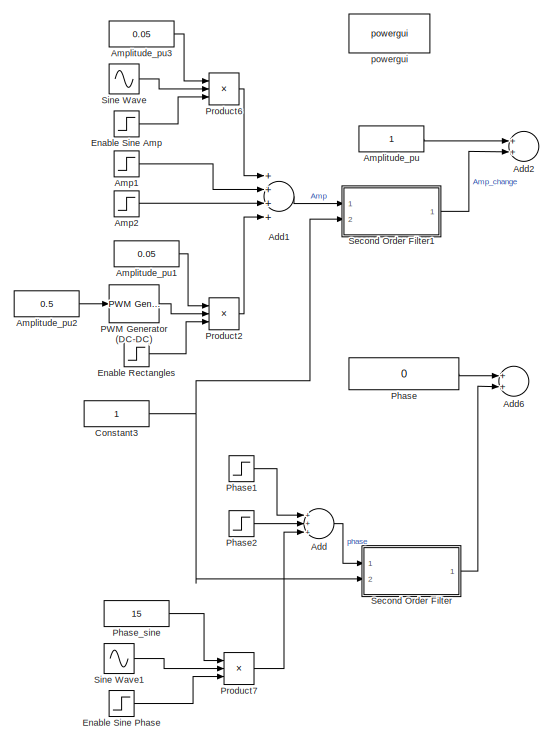
[diagram: root canvas - part 1/6, top left region]
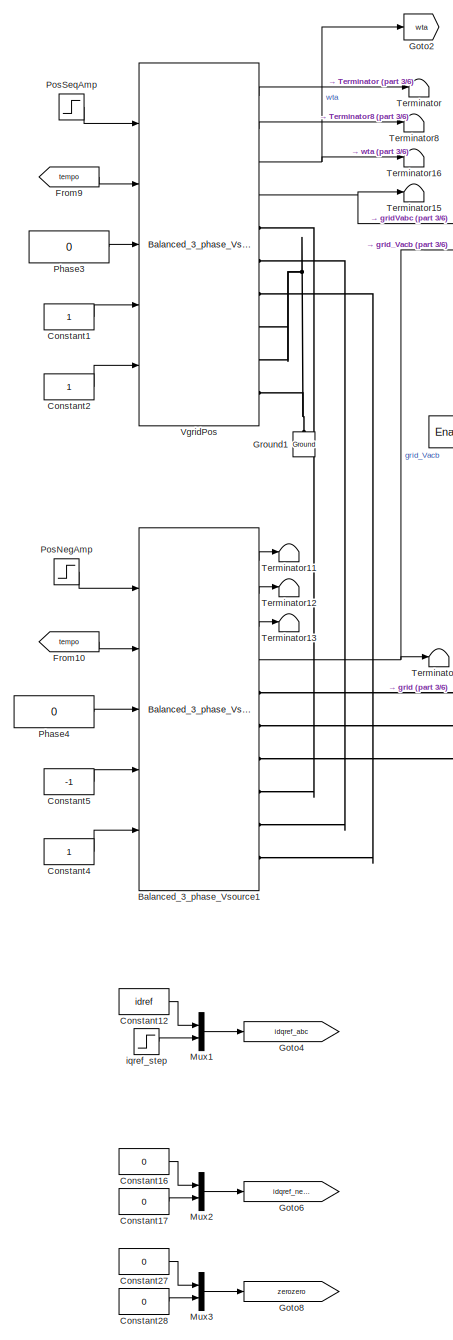
[diagram: root canvas - part 2/6, middle left region]
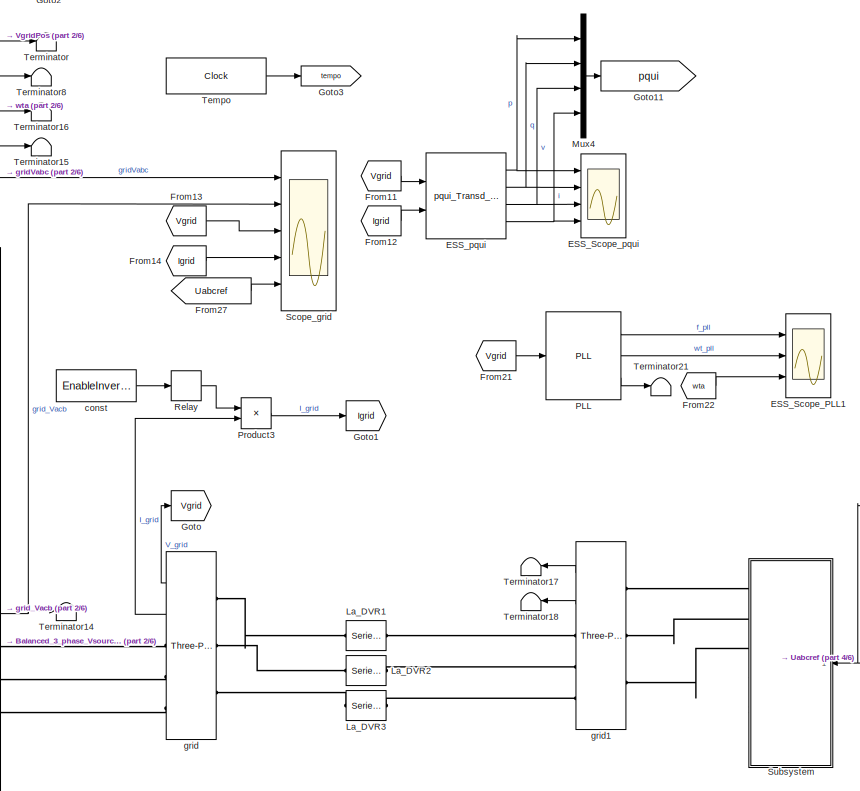
[diagram: root canvas - part 3/6, top center region]
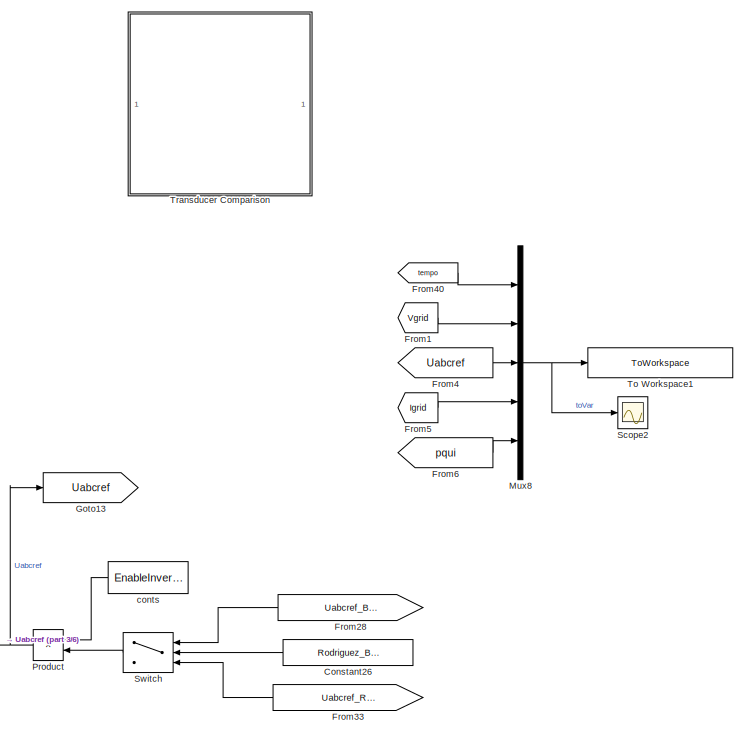
[diagram: root canvas - part 4/6, top right region]
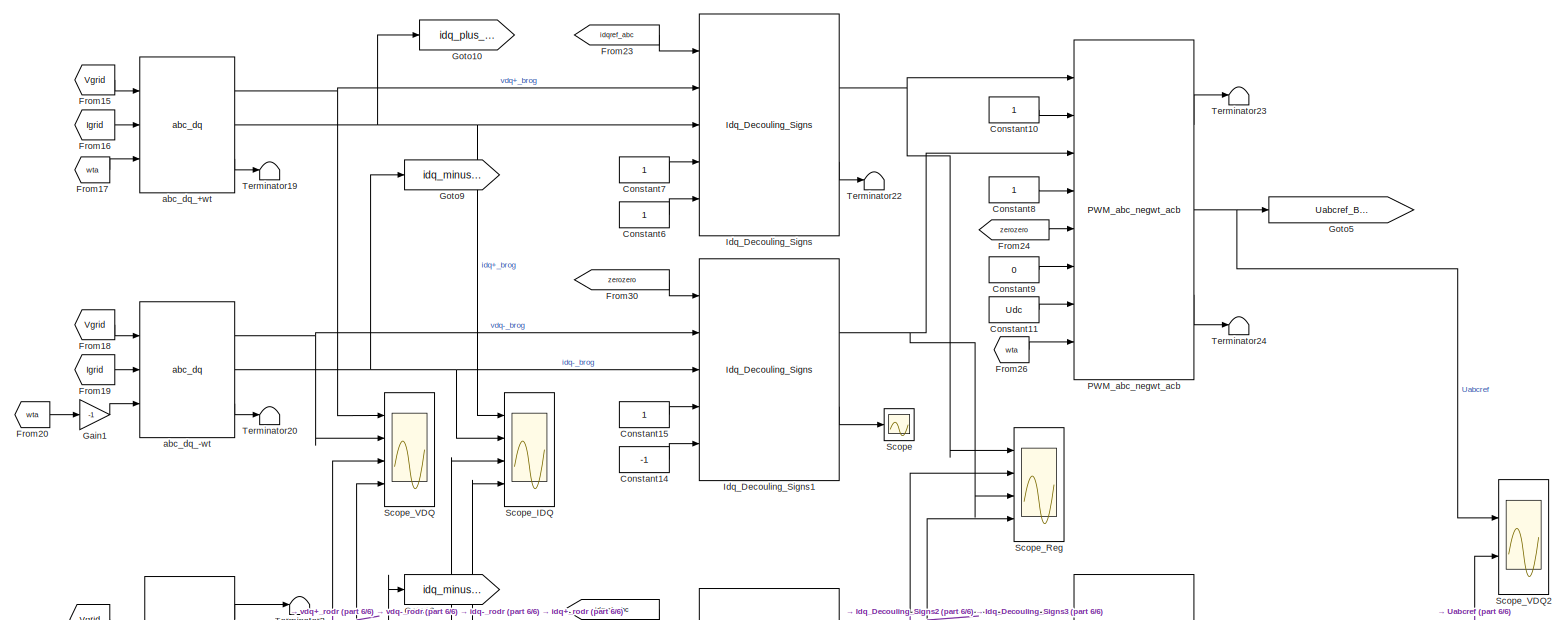
[diagram: root canvas - part 5/6, middle right region]
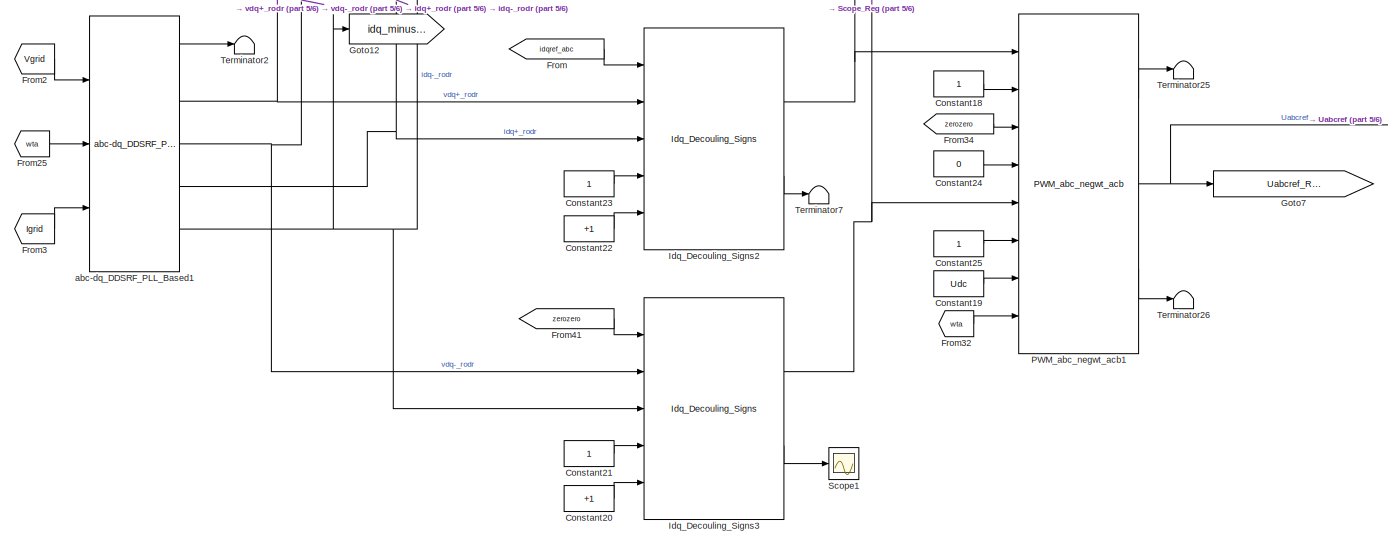
[diagram: root canvas - part 6/6, bottom right region]
MODEL slx_b98d9884da70
KIND model
CONFIG AbsTol = auto
CONFIG EnableMultiTasking = off
CONFIG FixedStep = auto
CONFIG MaxStep = auto
CONFIG MinStep = auto
CONFIG RelTol = 1e-3
CONFIG SampleTimeConstraint = Unconstrained
CONFIG Solver = VariableStepAuto
CONFIG SolverName = VariableStepAuto
CONFIG StartTime = 0.0
CONFIG StopTime = Ttot
BLOCK [Sum] Add
  Commented = on
  InputSameDT = off
  Inputs = +++
  OutDataTypeStr = Inherit: Inherit via internal rule
  Ports = [3, 1]
  SaturateOnIntegerOverflow = off
BLOCK [Sum] Add1
  Commented = on
  InputSameDT = off
  Inputs = ++++
  OutDataTypeStr = Inherit: Inherit via internal rule
  Ports = [4, 1]
  SaturateOnIntegerOverflow = off
BLOCK [Sum] Add2
  Commented = on
  InputSameDT = off
  OutDataTypeStr = Inherit: Inherit via internal rule
  Ports = [2, 1]
  SaturateOnIntegerOverflow = off
BLOCK [Sum] Add6
  Commented = on
  InputSameDT = off
  OutDataTypeStr = Inherit: Inherit via internal rule
  Ports = [2, 1]
  SaturateOnIntegerOverflow = off
BLOCK [Step] Amp1
  After = 0.1
  Commented = on
  Time = 1000.5
BLOCK [Step] Amp2
  After = -0.5
  Commented = on
  Time = 1000
BLOCK [Constant] Amplitude_pu
  Commented = on
BLOCK [Constant] Amplitude_pu1
  Commented = on
  Value = 0.05
BLOCK [Constant] Amplitude_pu2
  Commented = on
  Value = 0.5
BLOCK [Constant] Amplitude_pu3
  Commented = on
  Value = 0.05
BLOCK [Reference] Balanced_3_phase_Vsource1  REF=PhD_Library/Offshore_Oil_and_Wind/Balanced_3_phase_Vsource
  Ports = [5, 4, 0, 0, 0, 0, 6]
  SourceBlock = PhD_Library/Offshore_Oil_and_Wind/Balanced_3_phase_Vsource
  SourceType = Three-phase ideal voltage source
BLOCK [Constant] Constant1
BLOCK [Constant] Constant10
BLOCK [Constant] Constant11
  Value = Udc
BLOCK [Constant] Constant12
  Value = idref
BLOCK [Constant] Constant14
  Value = -1
BLOCK [Constant] Constant15
BLOCK [Constant] Constant16
  Value = 0
BLOCK [Constant] Constant17
  Value = 0
BLOCK [Constant] Constant18
BLOCK [Constant] Constant19
  Value = Udc
BLOCK [Constant] Constant2
BLOCK [Constant] Constant20
  Value = +1
BLOCK [Constant] Constant21
BLOCK [Constant] Constant22
  Value = +1
BLOCK [Constant] Constant23
BLOCK [Constant] Constant24
  Value = 0
BLOCK [Constant] Constant25
BLOCK [Constant] Constant26
  Value = Rodriguez_Brogan
BLOCK [Constant] Constant27
  Value = 0
BLOCK [Constant] Constant28
  Value = 0
BLOCK [Constant] Constant3
  Commented = on
BLOCK [Constant] Constant4
BLOCK [Constant] Constant5
  Value = -1
BLOCK [Constant] Constant6
BLOCK [Constant] Constant7
BLOCK [Constant] Constant8
BLOCK [Constant] Constant9
  Value = 0
BLOCK [Scope] ESS_Scope_PLL1
  Commented = on
  Floating = off
  NumInputPorts = 3
  Ports = [3]
  ScopeSpecificationString = Simulink.scopes.TimeScopeBlockCfg('CurrentConfiguration', extmgr.ConfigurationSet(extmgr.Configuration('Core','General UI',true),extmgr.Configuration('Core','Source UI',true),extmgr.Configuration('Sources','WiredSimulink',true,'DataLoggingVariableName','ScopeData2'),extmgr.Configuration('Visuals','Time Domain',true,'SerializedDisplays',{struct('MinYLimReal','0.96249','MaxYLimReal','1.03041','YLabe...<+1956ch>
BLOCK [Scope] ESS_Scope_pqui
  Floating = off
  NumInputPorts = 4
  Ports = [4]
  ScopeSpecificationString = Simulink.scopes.TimeScopeBlockCfg('CurrentConfiguration', extmgr.ConfigurationSet(extmgr.Configuration('Core','General UI',true),extmgr.Configuration('Core','Source UI',true),extmgr.Configuration('Sources','WiredSimulink',true,'DataLoggingVariableName','ScopeData1'),extmgr.Configuration('Visuals','Time Domain',true,'SerializedDisplays',{struct('MinYLimReal','-0.0606','MaxYLimReal','0.09826','YLabe...<+1977ch>
BLOCK [Reference] ESS_pqui  REF=PhD_Library/Offshore_Oil_and_Wind/pqui_Transd_NoZeroSeq
  Ports = [2, 4]
  SourceBlock = PhD_Library/Offshore_Oil_and_Wind/pqui_Transd_NoZeroSeq
  SourceType = u i p q transducer - No zero sequence
BLOCK [Step] Enable Rectangles
  Commented = on
  Time = 10000.2
BLOCK [Step] Enable Sine Amp
  Commented = on
  Time = 10000.2
BLOCK [Step] Enable Sine Phase
  Commented = on
  Time = 10000.2
BLOCK [From] From
  GotoTag = idqref_abc
BLOCK [From] From1
  GotoTag = Vgrid
  TagVisibility = global
BLOCK [From] From10
  GotoTag = tempo
  TagVisibility = global
BLOCK [From] From11
  GotoTag = Vgrid
  TagVisibility = global
BLOCK [From] From12
  GotoTag = Igrid
  TagVisibility = global
BLOCK [From] From13
  GotoTag = Vgrid
  TagVisibility = global
BLOCK [From] From14
  GotoTag = Igrid
  TagVisibility = global
BLOCK [From] From15
  GotoTag = Vgrid
  TagVisibility = global
BLOCK [From] From16
  GotoTag = Igrid
  TagVisibility = global
BLOCK [From] From17
  GotoTag = wta
  TagVisibility = global
BLOCK [From] From18
  GotoTag = Vgrid
  TagVisibility = global
BLOCK [From] From19
  GotoTag = Igrid
  TagVisibility = global
BLOCK [From] From2
  GotoTag = Vgrid
  TagVisibility = global
BLOCK [From] From20
  GotoTag = wta
  TagVisibility = global
BLOCK [From] From21
  Commented = on
  GotoTag = Vgrid
BLOCK [From] From22
  Commented = on
  GotoTag = wta
BLOCK [From] From23
  GotoTag = idqref_abc
BLOCK [From] From24
  GotoTag = zerozero
BLOCK [From] From25
  GotoTag = wta
  TagVisibility = global
BLOCK [From] From26
  GotoTag = wta
  TagVisibility = global
BLOCK [From] From27
  GotoTag = Uabcref
BLOCK [From] From28
  GotoTag = Uabcref_Brogan
  TagVisibility = global
BLOCK [From] From3
  GotoTag = Igrid
  TagVisibility = global
BLOCK [From] From30
  GotoTag = zerozero
BLOCK [From] From32
  GotoTag = wta
  TagVisibility = global
BLOCK [From] From33
  GotoTag = Uabcref_Rodriguez
  TagVisibility = global
BLOCK [From] From34
  GotoTag = zerozero
BLOCK [From] From4
  GotoTag = Uabcref
BLOCK [From] From40
  GotoTag = tempo
  TagVisibility = global
BLOCK [From] From41
  GotoTag = zerozero
BLOCK [From] From5
  GotoTag = Igrid
  TagVisibility = global
BLOCK [From] From6
  GotoTag = pqui
BLOCK [From] From9
  GotoTag = tempo
  TagVisibility = global
BLOCK [Gain] Gain1
  Gain = -1
  OutDataTypeStr = Inherit: Inherit via internal rule
  ParamDataTypeStr = Inherit: Inherit via internal rule
  SaturateOnIntegerOverflow = off
BLOCK [Goto] Goto
  GotoTag = Vgrid
  TagVisibility = global
BLOCK [Goto] Goto1
  GotoTag = Igrid
  TagVisibility = global
BLOCK [Goto] Goto10
  GotoTag = idq_plus_brogan
  TagVisibility = global
BLOCK [Goto] Goto11
  GotoTag = pqui
BLOCK [Goto] Goto12
  GotoTag = idq_minus_rod
  TagVisibility = global
BLOCK [Goto] Goto13
  GotoTag = Uabcref
BLOCK [Goto] Goto2
  GotoTag = wta
  TagVisibility = global
BLOCK [Goto] Goto3
  GotoTag = tempo
  TagVisibility = global
BLOCK [Goto] Goto4
  GotoTag = idqref_abc
BLOCK [Goto] Goto5
  GotoTag = Uabcref_Brogan
  TagVisibility = global
BLOCK [Goto] Goto6
  GotoTag = idqref_negwt
BLOCK [Goto] Goto7
  GotoTag = Uabcref_Rodriguez
  TagVisibility = global
BLOCK [Goto] Goto8
  GotoTag = zerozero
BLOCK [Goto] Goto9
  GotoTag = idq_minus_brogan
  TagVisibility = global
BLOCK [Reference] Ground1  REF=powerlib/Elements/Ground
  Ports = [0, 0, 0, 0, 0, 1]
  SourceBlock = powerlib/Elements/Ground
  SourceProductBaseCode = PS
  SourceProductName = Simscape Power Systems
  SourceType = Ground
BLOCK [Reference] Idq_Decouling_Signs  REF=PhD_Library/Offshore_Oil_and_Wind/Idq_Decouling_Signs
  Ports = [5, 2]
  SourceBlock = PhD_Library/Offshore_Oil_and_Wind/Idq_Decouling_Signs
  SourceType = Idq Controller - PI regulator with anti-windup
BLOCK [Reference] Idq_Decouling_Signs1  REF=PhD_Library/Offshore_Oil_and_Wind/Idq_Decouling_Signs
  Ports = [5, 2]
  SourceBlock = PhD_Library/Offshore_Oil_and_Wind/Idq_Decouling_Signs
  SourceType = Idq Controller - PI regulator with anti-windup
BLOCK [Reference] Idq_Decouling_Signs2  REF=PhD_Library/Offshore_Oil_and_Wind/Idq_Decouling_Signs
  Ports = [5, 2]
  SourceBlock = PhD_Library/Offshore_Oil_and_Wind/Idq_Decouling_Signs
  SourceType = Idq Controller - PI regulator with anti-windup
BLOCK [Reference] Idq_Decouling_Signs3  REF=PhD_Library/Offshore_Oil_and_Wind/Idq_Decouling_Signs
  Ports = [5, 2]
  SourceBlock = PhD_Library/Offshore_Oil_and_Wind/Idq_Decouling_Signs
  SourceType = Idq Controller - PI regulator with anti-windup
BLOCK [Reference] La_DVR1  REF=powerlib/Elements/Series RLC Branch
  AttributesFormatString = \n
  Ports = [0, 0, 0, 0, 0, 1, 1]
  SourceBlock = powerlib/Elements/Series RLC Branch
  SourceProductBaseCode = PS
  SourceProductName = Simscape Power Systems
  SourceType = Series RLC Branch
BLOCK [Reference] La_DVR2  REF=powerlib/Elements/Series RLC Branch
  AttributesFormatString = \n
  Ports = [0, 0, 0, 0, 0, 1, 1]
  SourceBlock = powerlib/Elements/Series RLC Branch
  SourceProductBaseCode = PS
  SourceProductName = Simscape Power Systems
  SourceType = Series RLC Branch
BLOCK [Reference] La_DVR3  REF=powerlib/Elements/Series RLC Branch
  AttributesFormatString = \n
  Ports = [0, 0, 0, 0, 0, 1, 1]
  SourceBlock = powerlib/Elements/Series RLC Branch
  SourceProductBaseCode = PS
  SourceProductName = Simscape Power Systems
  SourceType = Series RLC Branch
BLOCK [Mux] Mux1
  DisplayOption = bar
  Inputs = 2
  Ports = [2, 1]
BLOCK [Mux] Mux2
  DisplayOption = bar
  Inputs = 2
  Ports = [2, 1]
BLOCK [Mux] Mux3
  DisplayOption = bar
  Inputs = 2
  Ports = [2, 1]
BLOCK [Mux] Mux4
  DisplayOption = bar
  Ports = [4, 1]
BLOCK [Mux] Mux8
  DisplayOption = bar
  Inputs = 5
  Ports = [5, 1]
BLOCK [Reference] PLL  REF=PhD_Library/Offshore_Oil_and_Wind/PLL
  Commented = on
  Ports = [1, 3]
  SourceBlock = PhD_Library/Offshore_Oil_and_Wind/PLL
  SourceType = Matlabs PLL with POS and NEG omega t output
BLOCK [Reference] PWM Generator (DC-DC)  REF=powerlib_meascontrol/Pulse & Signal
Generators/PWM Generator
(DC-DC)
  Commented = on
  Ports = [1, 1]
  SourceBlock = powerlib_meascontrol/Pulse & Signal\nGenerators/PWM Generator\n(DC-DC)
  SourceProductBaseCode = PS
  SourceProductName = Simscape Power Systems
  SourceType = PWM Generator (DC-DC)
BLOCK [Reference] PWM_abc_negwt_acb  REF=PhD_Library/Offshore_Oil_and_Wind/PWM_abc_negwt_acb
  Ports = [8, 3]
  SourceBlock = PhD_Library/Offshore_Oil_and_Wind/PWM_abc_negwt_acb
  SourceType = Scaling of vdq ref and PWM gate generation
BLOCK [Reference] PWM_abc_negwt_acb1  REF=PhD_Library/Offshore_Oil_and_Wind/PWM_abc_negwt_acb
  Ports = [8, 3]
  SourceBlock = PhD_Library/Offshore_Oil_and_Wind/PWM_abc_negwt_acb
  SourceType = Scaling of vdq ref and PWM gate generation
BLOCK [Constant] Phase
  Commented = on
  Value = 0
BLOCK [Step] Phase1
  After = +15
  Commented = on
  Time = 10000.2
BLOCK [Step] Phase2
  After = -5
  Commented = on
  Time = 1000
BLOCK [Constant] Phase3
  Value = 0
BLOCK [Constant] Phase4
  Value = 0
BLOCK [Constant] Phase_sine
  Commented = on
  Value = 15
BLOCK [Step] PosNegAmp
  After = V_NegSeq_FinalValue
  Before = V_NegSeq_InitialValue
  Time = V_NegSeq_StepTime
BLOCK [Step] PosSeqAmp
  After = V_PosSeq_FinalValue
  Before = V_PosSeq_InitialValue
  Time = V_PosSeq_StepTime
BLOCK [Product] Product
  InputSameDT = off
  OutDataTypeStr = Inherit: Inherit via internal rule
  Ports = [2, 1]
  RndMeth = Floor
  SaturateOnIntegerOverflow = off
BLOCK [Product] Product2
  Commented = on
  InputSameDT = off
  Inputs = 3
  OutDataTypeStr = Inherit: Inherit via internal rule
  Ports = [3, 1]
  RndMeth = Floor
  SaturateOnIntegerOverflow = off
BLOCK [Product] Product3
  InputSameDT = off
  OutDataTypeStr = Inherit: Inherit via internal rule
  Ports = [2, 1]
  RndMeth = Floor
  SaturateOnIntegerOverflow = off
BLOCK [Product] Product6
  Commented = on
  InputSameDT = off
  Inputs = 3
  OutDataTypeStr = Inherit: Inherit via internal rule
  Ports = [3, 1]
  RndMeth = Floor
  SaturateOnIntegerOverflow = off
BLOCK [Product] Product7
  Commented = on
  InputSameDT = off
  Inputs = 3
  OutDataTypeStr = Inherit: Inherit via internal rule
  Ports = [3, 1]
  RndMeth = Floor
  SaturateOnIntegerOverflow = off
BLOCK [Relay] Relay
  InputProcessing = Elements as channels (sample based)
  OffOutputValue = -1
  OffSwitchValue = 0.4
  OnSwitchValue = 0.5
BLOCK [Scope] Scope
  Commented = on
  Floating = off
  NumInputPorts = 1
  Ports = [1]
  ScopeSpecificationString = Simulink.scopes.TimeScopeBlockCfg('CurrentConfiguration', extmgr.ConfigurationSet(extmgr.Configuration('Core','General UI',true),extmgr.Configuration('Core','Source UI',true),extmgr.Configuration('Sources','WiredSimulink',true,'DataLoggingVariableName','ScopeData3'),extmgr.Configuration('Visuals','Time Domain',true,'SerializedDisplays',{struct('MinYLimReal','-0.04801','MaxYLimReal','0.04878','YLab...<+1632ch>
BLOCK [Scope] Scope1
  Commented = on
  Floating = off
  NumInputPorts = 1
  Ports = [1]
  ScopeSpecificationString = Simulink.scopes.TimeScopeBlockCfg('CurrentConfiguration', extmgr.ConfigurationSet(extmgr.Configuration('Core','General UI',true),extmgr.Configuration('Core','Source UI',true),extmgr.Configuration('Sources','WiredSimulink',true,'DataLoggingVariableName','ScopeData1'),extmgr.Configuration('Visuals','Time Domain',true,'SerializedDisplays',{struct('MinYLimReal','-0.04801','MaxYLimReal','0.04878','YLab...<+1658ch>
BLOCK [Scope] Scope2
  Commented = on
  Floating = off
  NumInputPorts = 1
  Ports = [1]
  ScopeSpecificationString = Simulink.scopes.TimeScopeBlockCfg('CurrentConfiguration', extmgr.ConfigurationSet(extmgr.Configuration('Core','General UI',true),extmgr.Configuration('Core','Source UI',true),extmgr.Configuration('Sources','WiredSimulink',true,'DataLoggingVariableName','ScopeData6'),extmgr.Configuration('Visuals','Time Domain',true,'SerializedDisplays',{struct('MinYLimReal','-0.04801','MaxYLimReal','0.04878','YLab...<+1906ch>
BLOCK [Scope] Scope_IDQ
  Floating = off
  NumInputPorts = 4
  Ports = [4]
  ScopeSpecificationString = Simulink.scopes.TimeScopeBlockCfg('CurrentConfiguration', extmgr.ConfigurationSet(extmgr.Configuration('Core','General UI',true),extmgr.Configuration('Core','Source UI',true),extmgr.Configuration('Sources','WiredSimulink',true,'DataLoggingVariableName','ScopeData4'),extmgr.Configuration('Visuals','Time Domain',true,'SerializedDisplays',{struct('MinYLimReal','-0.01382','MaxYLimReal','0.01021','YLab...<+2260ch>
BLOCK [Scope] Scope_Reg
  Commented = on
  Floating = off
  NumInputPorts = 4
  Ports = [4]
  ScopeSpecificationString = Simulink.scopes.TimeScopeBlockCfg('CurrentConfiguration', extmgr.ConfigurationSet(extmgr.Configuration('Core','General UI',true),extmgr.Configuration('Core','Source UI',true),extmgr.Configuration('Sources','WiredSimulink',true,'DataLoggingVariableName','ScopeData3'),extmgr.Configuration('Visuals','Time Domain',true,'SerializedDisplays',{struct('MinYLimReal','-0.40601','MaxYLimReal','1.22998','YLab...<+2050ch>
BLOCK [Scope] Scope_VDQ
  Commented = on
  Floating = off
  NumInputPorts = 4
  Ports = [4]
  ScopeSpecificationString = Simulink.scopes.TimeScopeBlockCfg('CurrentConfiguration', extmgr.ConfigurationSet(extmgr.Configuration('Core','General UI',true),extmgr.Configuration('Core','Source UI',true),extmgr.Configuration('Sources','WiredSimulink',true,'DataLoggingVariableName','ScopeData1'),extmgr.Configuration('Visuals','Time Domain',true,'SerializedDisplays',{struct('MinYLimReal','-0.36137','MaxYLimReal','1.19648','YLab...<+1894ch>
BLOCK [Scope] Scope_VDQ2
  Commented = on
  Floating = off
  NumInputPorts = 2
  Ports = [2]
  ScopeSpecificationString = Simulink.scopes.TimeScopeBlockCfg('CurrentConfiguration', extmgr.ConfigurationSet(extmgr.Configuration('Core','General UI',true),extmgr.Configuration('Core','Source UI',true),extmgr.Configuration('Sources','WiredSimulink',true,'DataLoggingVariableName','ScopeData2'),extmgr.Configuration('Visuals','Time Domain',true,'SerializedDisplays',{struct('MinYLimReal','-4.26882','MaxYLimReal','4.26911','YLab...<+1859ch>
BLOCK [Scope] Scope_grid
  Floating = off
  NumInputPorts = 5
  Ports = [5]
  ScopeSpecificationString = Simulink.scopes.TimeScopeBlockCfg('CurrentConfiguration', extmgr.ConfigurationSet(extmgr.Configuration('Core','General UI',true),extmgr.Configuration('Core','Source UI',true),extmgr.Configuration('Sources','WiredSimulink',true,'DataLoggingVariableName','ScopeData1'),extmgr.Configuration('Visuals','Time Domain',true,'SerializedDisplays',{struct('MinYLimReal','-2.10179','MaxYLimReal','1.9149','YLabe...<+2391ch>
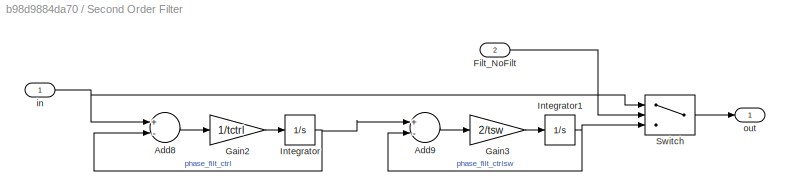
BLOCK [SubSystem] Second Order Filter
  Commented = on
  Ports = [2, 1]
  RequestExecContextInheritance = off
BLOCK [Sum] Second Order Filter/Add8
  InputSameDT = off
  Inputs = +-
  OutDataTypeStr = Inherit: Inherit via internal rule
  Ports = [2, 1]
  SaturateOnIntegerOverflow = off
BLOCK [Sum] Second Order Filter/Add9
  InputSameDT = off
  Inputs = +-
  OutDataTypeStr = Inherit: Inherit via internal rule
  Ports = [2, 1]
  SaturateOnIntegerOverflow = off
BLOCK [Inport] Second Order Filter/Filt_NoFilt
  IconDisplay = Port number
  Port = 2
BLOCK [Gain] Second Order Filter/Gain2
  Gain = 1/tctrl
  OutDataTypeStr = Inherit: Inherit via internal rule
  ParamDataTypeStr = Inherit: Inherit via internal rule
  SaturateOnIntegerOverflow = off
BLOCK [Gain] Second Order Filter/Gain3
  Gain = 2/tsw
  OutDataTypeStr = Inherit: Inherit via internal rule
  ParamDataTypeStr = Inherit: Inherit via internal rule
  SaturateOnIntegerOverflow = off
BLOCK [Integrator] Second Order Filter/Integrator
  Ports = [1, 1]
BLOCK [Integrator] Second Order Filter/Integrator1
  Ports = [1, 1]
BLOCK [Switch] Second Order Filter/Switch
  Criteria = u2 > Threshold
  InputSameDT = off
  SaturateOnIntegerOverflow = off
BLOCK [Inport] Second Order Filter/in
  IconDisplay = Port number
BLOCK [Outport] Second Order Filter/out
  IconDisplay = Port number
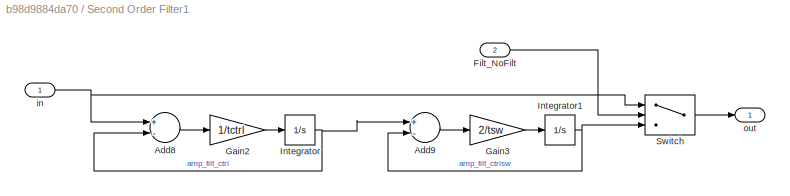
BLOCK [SubSystem] Second Order Filter1
  Commented = on
  Ports = [2, 1]
  RequestExecContextInheritance = off
BLOCK [Sum] Second Order Filter1/Add8
  InputSameDT = off
  Inputs = +-
  OutDataTypeStr = Inherit: Inherit via internal rule
  Ports = [2, 1]
  SaturateOnIntegerOverflow = off
BLOCK [Sum] Second Order Filter1/Add9
  InputSameDT = off
  Inputs = +-
  OutDataTypeStr = Inherit: Inherit via internal rule
  Ports = [2, 1]
  SaturateOnIntegerOverflow = off
BLOCK [Inport] Second Order Filter1/Filt_NoFilt
  IconDisplay = Port number
  Port = 2
BLOCK [Gain] Second Order Filter1/Gain2
  Gain = 1/tctrl
  OutDataTypeStr = Inherit: Inherit via internal rule
  ParamDataTypeStr = Inherit: Inherit via internal rule
  SaturateOnIntegerOverflow = off
BLOCK [Gain] Second Order Filter1/Gain3
  Gain = 2/tsw
  OutDataTypeStr = Inherit: Inherit via internal rule
  ParamDataTypeStr = Inherit: Inherit via internal rule
  SaturateOnIntegerOverflow = off
BLOCK [Integrator] Second Order Filter1/Integrator
  Ports = [1, 1]
BLOCK [Integrator] Second Order Filter1/Integrator1
  Ports = [1, 1]
BLOCK [Switch] Second Order Filter1/Switch
  Criteria = u2 > Threshold
  InputSameDT = off
  SaturateOnIntegerOverflow = off
BLOCK [Inport] Second Order Filter1/in
  IconDisplay = Port number
BLOCK [Outport] Second Order Filter1/out
  IconDisplay = Port number
BLOCK [Sin] Sine Wave
  Commented = on
  Frequency = 2*pi*(50)
  Ports = [0, 1]
  SampleTime = 0
BLOCK [Sin] Sine Wave1
  Commented = on
  Frequency = 2*pi*(50)
  Ports = [0, 1]
  SampleTime = 0
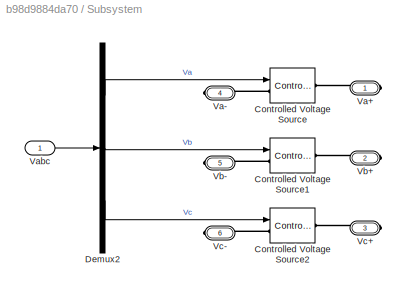
BLOCK [SubSystem] Subsystem
  Ports = [1, 0, 0, 0, 0, 0, 6]
  RequestExecContextInheritance = off
BLOCK [Reference] Subsystem/Controlled Voltage Source  REF=powerlib/Electrical
Sources/Controlled Voltage Source
  Ports = [1, 0, 0, 0, 0, 1, 1]
  SourceBlock = powerlib/Electrical\nSources/Controlled Voltage Source
  SourceProductBaseCode = PS
  SourceProductName = Simscape Power Systems
  SourceType = Controlled Voltage Source
BLOCK [Reference] Subsystem/Controlled Voltage Source1  REF=powerlib/Electrical
Sources/Controlled Voltage Source
  Ports = [1, 0, 0, 0, 0, 1, 1]
  SourceBlock = powerlib/Electrical\nSources/Controlled Voltage Source
  SourceProductBaseCode = PS
  SourceProductName = Simscape Power Systems
  SourceType = Controlled Voltage Source
BLOCK [Reference] Subsystem/Controlled Voltage Source2  REF=powerlib/Electrical
Sources/Controlled Voltage Source
  Ports = [1, 0, 0, 0, 0, 1, 1]
  SourceBlock = powerlib/Electrical\nSources/Controlled Voltage Source
  SourceProductBaseCode = PS
  SourceProductName = Simscape Power Systems
  SourceType = Controlled Voltage Source
BLOCK [Demux] Subsystem/Demux2
  DisplayOption = bar
  Outputs = 3
  Ports = [1, 3]
BLOCK [PMIOPort] Subsystem/Va+
  Side = Right
BLOCK [PMIOPort] Subsystem/Va-
  Port = 4
  Side = Right
BLOCK [Inport] Subsystem/Vabc
  IconDisplay = Port number
BLOCK [PMIOPort] Subsystem/Vb+
  Port = 2
  Side = Right
BLOCK [PMIOPort] Subsystem/Vb-
  Port = 5
  Side = Right
BLOCK [PMIOPort] Subsystem/Vc+
  Port = 3
  Side = Right
BLOCK [PMIOPort] Subsystem/Vc-
  Port = 6
  Side = Right
BLOCK [Switch] Switch
  Criteria = u2 > Threshold
  InputSameDT = off
  SaturateOnIntegerOverflow = off
BLOCK [Clock] Tempo
  Decimation = 1
  DisplayTime = on
BLOCK [Terminator] Terminator
BLOCK [Terminator] Terminator11
BLOCK [Terminator] Terminator12
BLOCK [Terminator] Terminator13
BLOCK [Terminator] Terminator14
BLOCK [Terminator] Terminator15
BLOCK [Terminator] Terminator16
BLOCK [Terminator] Terminator17
BLOCK [Terminator] Terminator18
BLOCK [Terminator] Terminator19
BLOCK [Terminator] Terminator2
BLOCK [Terminator] Terminator20
BLOCK [Terminator] Terminator21
  Commented = on
BLOCK [Terminator] Terminator22
BLOCK [Terminator] Terminator23
BLOCK [Terminator] Terminator24
BLOCK [Terminator] Terminator25
BLOCK [Terminator] Terminator26
BLOCK [Terminator] Terminator7
BLOCK [Terminator] Terminator8
BLOCK [ToWorkspace] To Workspace1
  FixptAsFi = on
  MaxDataPoints = inf
  Ports = [1]
  SampleTime = Ts_control
  Save2DSignal = 3-D array (concatenate along third dimension)
  VariableName = viabcpqui
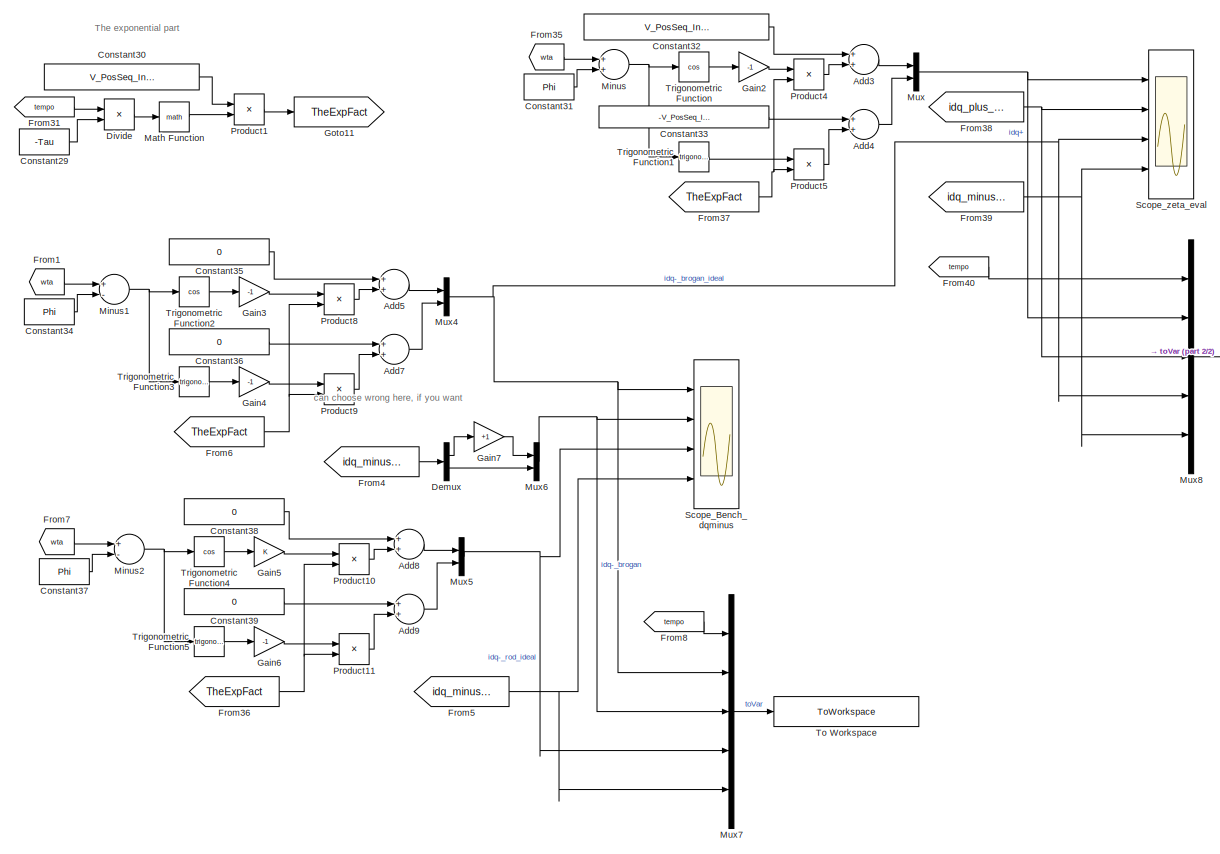
[diagram: Transducer Comparison - part 1/2, most of the canvas]
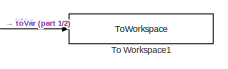
[diagram: Transducer Comparison - part 2/2, middle right region]
BLOCK [SubSystem] Transducer Comparison
  Ports = []
  RequestExecContextInheritance = off
BLOCK [Sum] Transducer Comparison/Add3
  InputSameDT = off
  OutDataTypeStr = Inherit: Inherit via internal rule
  Ports = [2, 1]
  SaturateOnIntegerOverflow = off
BLOCK [Sum] Transducer Comparison/Add4
  InputSameDT = off
  OutDataTypeStr = Inherit: Inherit via internal rule
  Ports = [2, 1]
  SaturateOnIntegerOverflow = off
BLOCK [Sum] Transducer Comparison/Add5
  InputSameDT = off
  OutDataTypeStr = Inherit: Inherit via internal rule
  Ports = [2, 1]
  SaturateOnIntegerOverflow = off
BLOCK [Sum] Transducer Comparison/Add7
  InputSameDT = off
  OutDataTypeStr = Inherit: Inherit via internal rule
  Ports = [2, 1]
  SaturateOnIntegerOverflow = off
BLOCK [Sum] Transducer Comparison/Add8
  InputSameDT = off
  OutDataTypeStr = Inherit: Inherit via internal rule
  Ports = [2, 1]
  SaturateOnIntegerOverflow = off
BLOCK [Sum] Transducer Comparison/Add9
  InputSameDT = off
  OutDataTypeStr = Inherit: Inherit via internal rule
  Ports = [2, 1]
  SaturateOnIntegerOverflow = off
BLOCK [Constant] Transducer Comparison/Constant29
  Value = -Tau
BLOCK [Constant] Transducer Comparison/Constant30
  Value = V_PosSeq_InitialValue/Z
BLOCK [Constant] Transducer Comparison/Constant31
  Value = Phi
BLOCK [Constant] Transducer Comparison/Constant32
  Value = V_PosSeq_InitialValue/Z*cos(Phi)
BLOCK [Constant] Transducer Comparison/Constant33
  Value = -V_PosSeq_InitialValue/Z*sin(Phi)
BLOCK [Constant] Transducer Comparison/Constant34
  Value = Phi
BLOCK [Constant] Transducer Comparison/Constant35
  Value = 0
BLOCK [Constant] Transducer Comparison/Constant36
  Value = 0
BLOCK [Constant] Transducer Comparison/Constant37
  Value = Phi
BLOCK [Constant] Transducer Comparison/Constant38
  Value = 0
BLOCK [Constant] Transducer Comparison/Constant39
  Value = 0
BLOCK [Demux] Transducer Comparison/Demux
  DisplayOption = bar
  Outputs = 2
  Ports = [1, 2]
BLOCK [Product] Transducer Comparison/Divide
  InputSameDT = off
  Inputs = */
  OutDataTypeStr = Inherit: Inherit via internal rule
  Ports = [2, 1]
  RndMeth = Floor
  SaturateOnIntegerOverflow = off
BLOCK [From] Transducer Comparison/From1
  GotoTag = wta
  TagVisibility = global
BLOCK [From] Transducer Comparison/From31
  GotoTag = tempo
  TagVisibility = global
BLOCK [From] Transducer Comparison/From35
  GotoTag = wta
  TagVisibility = global
BLOCK [From] Transducer Comparison/From36
  GotoTag = TheExpFact
BLOCK [From] Transducer Comparison/From37
  GotoTag = TheExpFact
BLOCK [From] Transducer Comparison/From38
  GotoTag = idq_plus_brogan
  TagVisibility = global
BLOCK [From] Transducer Comparison/From39
  GotoTag = idq_minus_brogan
  TagVisibility = global
BLOCK [From] Transducer Comparison/From4
  GotoTag = idq_minus_brogan
  TagVisibility = global
BLOCK [From] Transducer Comparison/From40
  GotoTag = tempo
  TagVisibility = global
BLOCK [From] Transducer Comparison/From5
  GotoTag = idq_minus_rod
  TagVisibility = global
BLOCK [From] Transducer Comparison/From6
  GotoTag = TheExpFact
BLOCK [From] Transducer Comparison/From7
  GotoTag = wta
  TagVisibility = global
BLOCK [From] Transducer Comparison/From8
  GotoTag = tempo
  TagVisibility = global
BLOCK [Gain] Transducer Comparison/Gain2
  Gain = -1
  OutDataTypeStr = Inherit: Inherit via internal rule
  ParamDataTypeStr = Inherit: Inherit via internal rule
  SaturateOnIntegerOverflow = off
BLOCK [Gain] Transducer Comparison/Gain3
  Gain = -1
  OutDataTypeStr = Inherit: Inherit via internal rule
  ParamDataTypeStr = Inherit: Inherit via internal rule
  SaturateOnIntegerOverflow = off
BLOCK [Gain] Transducer Comparison/Gain4
  Gain = -1
  OutDataTypeStr = Inherit: Inherit via internal rule
  ParamDataTypeStr = Inherit: Inherit via internal rule
  SaturateOnIntegerOverflow = off
BLOCK [Gain] Transducer Comparison/Gain5
  OutDataTypeStr = Inherit: Inherit via internal rule
  ParamDataTypeStr = Inherit: Inherit via internal rule
  SaturateOnIntegerOverflow = off
BLOCK [Gain] Transducer Comparison/Gain6
  Gain = -1
  OutDataTypeStr = Inherit: Inherit via internal rule
  ParamDataTypeStr = Inherit: Inherit via internal rule
  SaturateOnIntegerOverflow = off
BLOCK [Gain] Transducer Comparison/Gain7
  Gain = +1
  OutDataTypeStr = Inherit: Inherit via internal rule
  ParamDataTypeStr = Inherit: Inherit via internal rule
  SaturateOnIntegerOverflow = off
BLOCK [Goto] Transducer Comparison/Goto11
  GotoTag = TheExpFact
BLOCK [Math] Transducer Comparison/Math Function
  Ports = [1, 1]
BLOCK [Sum] Transducer Comparison/Minus
  InputSameDT = off
  OutDataTypeStr = Inherit: Inherit via internal rule
  Ports = [2, 1]
  SaturateOnIntegerOverflow = off
BLOCK [Sum] Transducer Comparison/Minus1
  InputSameDT = off
  Inputs = +-
  OutDataTypeStr = Inherit: Inherit via internal rule
  Ports = [2, 1]
  SaturateOnIntegerOverflow = off
BLOCK [Sum] Transducer Comparison/Minus2
  InputSameDT = off
  Inputs = +-
  OutDataTypeStr = Inherit: Inherit via internal rule
  Ports = [2, 1]
  SaturateOnIntegerOverflow = off
BLOCK [Mux] Transducer Comparison/Mux
  DisplayOption = bar
  Inputs = 2
  Ports = [2, 1]
BLOCK [Mux] Transducer Comparison/Mux4
  DisplayOption = bar
  Inputs = 2
  Ports = [2, 1]
BLOCK [Mux] Transducer Comparison/Mux5
  DisplayOption = bar
  Inputs = 2
  Ports = [2, 1]
BLOCK [Mux] Transducer Comparison/Mux6
  DisplayOption = bar
  Inputs = 2
  Ports = [2, 1]
BLOCK [Mux] Transducer Comparison/Mux7
  DisplayOption = bar
  Inputs = 5
  Ports = [5, 1]
BLOCK [Mux] Transducer Comparison/Mux8
  DisplayOption = bar
  Inputs = 5
  Ports = [5, 1]
BLOCK [Product] Transducer Comparison/Product1
  InputSameDT = off
  OutDataTypeStr = Inherit: Inherit via internal rule
  Ports = [2, 1]
  RndMeth = Floor
  SaturateOnIntegerOverflow = off
BLOCK [Product] Transducer Comparison/Product10
  InputSameDT = off
  OutDataTypeStr = Inherit: Inherit via internal rule
  Ports = [2, 1]
  RndMeth = Floor
  SaturateOnIntegerOverflow = off
BLOCK [Product] Transducer Comparison/Product11
  InputSameDT = off
  OutDataTypeStr = Inherit: Inherit via internal rule
  Ports = [2, 1]
  RndMeth = Floor
  SaturateOnIntegerOverflow = off
BLOCK [Product] Transducer Comparison/Product4
  InputSameDT = off
  OutDataTypeStr = Inherit: Inherit via internal rule
  Ports = [2, 1]
  RndMeth = Floor
  SaturateOnIntegerOverflow = off
BLOCK [Product] Transducer Comparison/Product5
  InputSameDT = off
  OutDataTypeStr = Inherit: Inherit via internal rule
  Ports = [2, 1]
  RndMeth = Floor
  SaturateOnIntegerOverflow = off
BLOCK [Product] Transducer Comparison/Product8
  InputSameDT = off
  OutDataTypeStr = Inherit: Inherit via internal rule
  Ports = [2, 1]
  RndMeth = Floor
  SaturateOnIntegerOverflow = off
BLOCK [Product] Transducer Comparison/Product9
  InputSameDT = off
  OutDataTypeStr = Inherit: Inherit via internal rule
  Ports = [2, 1]
  RndMeth = Floor
  SaturateOnIntegerOverflow = off
BLOCK [Scope] Transducer Comparison/Scope_Bench_dqminus
  Commented = on
  Floating = off
  NumInputPorts = 4
  Ports = [4]
  ScopeSpecificationString = Simulink.scopes.TimeScopeBlockCfg('CurrentConfiguration', extmgr.ConfigurationSet(extmgr.Configuration('Core','General UI',true),extmgr.Configuration('Core','Source UI',true),extmgr.Configuration('Sources','WiredSimulink',true,'DataLoggingVariableName','ScopeData4'),extmgr.Configuration('Visuals','Time Domain',true,'SerializedDisplays',{struct('MinYLimReal','-0.23346','MaxYLimReal','0.24761','YLab...<+1791ch>
BLOCK [Scope] Transducer Comparison/Scope_zeta_eval
  Commented = on
  Floating = off
  NumInputPorts = 4
  Ports = [4]
  ScopeSpecificationString = Simulink.scopes.TimeScopeBlockCfg('CurrentConfiguration', extmgr.ConfigurationSet(extmgr.Configuration('Core','General UI',true),extmgr.Configuration('Core','Source UI',true),extmgr.Configuration('Sources','WiredSimulink',true,'DataLoggingVariableName','ScopeData5'),extmgr.Configuration('Visuals','Time Domain',true,'SerializedDisplays',{struct('MinYLimReal','-0.44119','MaxYLimReal','0.27069','YLab...<+1772ch>
BLOCK [ToWorkspace] Transducer Comparison/To Workspace
  FixptAsFi = on
  MaxDataPoints = inf
  Ports = [1]
  SampleTime = Ts_control
  Save2DSignal = 3-D array (concatenate along third dimension)
  VariableName = BenchNegative
BLOCK [ToWorkspace] Transducer Comparison/To Workspace1
  FixptAsFi = on
  MaxDataPoints = inf
  Ports = [1]
  SampleTime = Ts_control
  Save2DSignal = 3-D array (concatenate along third dimension)
  VariableName = BenchPositive
BLOCK [Trigonometry] Transducer Comparison/Trigonometric Function
  Operator = cos
  Ports = [1, 1]
BLOCK [Trigonometry] Transducer Comparison/Trigonometric Function1
  Ports = [1, 1]
BLOCK [Trigonometry] Transducer Comparison/Trigonometric Function2
  Operator = cos
  Ports = [1, 1]
BLOCK [Trigonometry] Transducer Comparison/Trigonometric Function3
  Ports = [1, 1]
BLOCK [Trigonometry] Transducer Comparison/Trigonometric Function4
  Operator = cos
  Ports = [1, 1]
BLOCK [Trigonometry] Transducer Comparison/Trigonometric Function5
  Ports = [1, 1]
BLOCK [Reference] VgridPos  REF=PhD_Library/Offshore_Oil_and_Wind/Balanced_3_phase_Vsource
  Ports = [5, 4, 0, 0, 0, 0, 6]
  SourceBlock = PhD_Library/Offshore_Oil_and_Wind/Balanced_3_phase_Vsource
  SourceType = Three-phase ideal voltage source
BLOCK [Reference] abc-dq_DDSRF_PLL_Based1  REF=PhD_Library/Offshore_Oil_and_Wind/abc-dq_DDSRF_PLL_Based
  Ports = [3, 5]
  SourceBlock = PhD_Library/Offshore_Oil_and_Wind/abc-dq_DDSRF_PLL_Based
  SourceType = abc -> dq based on DDSRF PLL
BLOCK [Reference] abc_dq_+wt  REF=PhD_Library/Offshore_Oil_and_Wind/abc_dq
  Ports = [3, 3]
  SourceBlock = PhD_Library/Offshore_Oil_and_Wind/abc_dq
  SourceType = abc->dq with Matlab
BLOCK [Reference] abc_dq_-wt  REF=PhD_Library/Offshore_Oil_and_Wind/abc_dq
  Ports = [3, 3]
  SourceBlock = PhD_Library/Offshore_Oil_and_Wind/abc_dq
  SourceType = abc->dq with Matlab
BLOCK [Constant] const
  Value = EnableInverter
BLOCK [Constant] conts
  Value = EnableInverter
BLOCK [Reference] grid  REF=powerlib/Measurements/Three-Phase
V-I Measurement
  Ports = [0, 2, 0, 0, 0, 3, 3]
  SourceBlock = powerlib/Measurements/Three-Phase\nV-I Measurement
  SourceProductBaseCode = PS
  SourceProductName = Simscape Power Systems
  SourceType = Three-Phase VI Measurement
BLOCK [Reference] grid1  REF=powerlib/Measurements/Three-Phase
V-I Measurement
  Ports = [0, 2, 0, 0, 0, 3, 3]
  SourceBlock = powerlib/Measurements/Three-Phase\nV-I Measurement
  SourceProductBaseCode = PS
  SourceProductName = Simscape Power Systems
  SourceType = Three-Phase VI Measurement
BLOCK [Step] iqref_step
  After = iqref_FinalLevel
  Before = iqref_InitialLevel
  Time = iqref_StepTime
BLOCK [Reference] powergui  REF=powerlib/powergui
  Ports = []
  Priority = 1
  SourceBlock = powerlib/powergui
  SourceProductBaseCode = PS
  SourceProductName = Simscape Power Systems
  SourceType = PSB option menu block
ANNOTATION Transducer Comparison: The exponential part
ANNOTATION Transducer Comparison: can choose wrong here, if you want
LINE Add1:1 -> Second Order Filter1:1
LINE Add:1 -> Second Order Filter:1
LINE Amp1:1 -> Add1:2
LINE Amp2:1 -> Add1:3
LINE Amplitude_pu1:1 -> Product2:1
LINE Amplitude_pu2:1 -> PWM Generator (DC-DC):1
LINE Amplitude_pu3:1 -> Product6:1
LINE Amplitude_pu:1 -> Add2:1
LINE Balanced_3_phase_Vsource1:1 -> Terminator11:1
LINE Balanced_3_phase_Vsource1:2 -> Terminator12:1
LINE Balanced_3_phase_Vsource1:3 -> Terminator13:1
NET Balanced_3_phase_Vsource1:4 -> Scope_grid:2, Terminator14:1
LINE Constant10:1 -> PWM_abc_negwt_acb:2
LINE Constant11:1 -> PWM_abc_negwt_acb:7
LINE Constant12:1 -> Mux1:1
LINE Constant14:1 -> Idq_Decouling_Signs1:5
LINE Constant15:1 -> Idq_Decouling_Signs1:4
LINE Constant16:1 -> Mux2:1
LINE Constant17:1 -> Mux2:2
LINE Constant18:1 -> PWM_abc_negwt_acb1:2
LINE Constant19:1 -> PWM_abc_negwt_acb1:7
LINE Constant1:1 -> VgridPos:4
LINE Constant20:1 -> Idq_Decouling_Signs3:5
LINE Constant21:1 -> Idq_Decouling_Signs3:4
LINE Constant22:1 -> Idq_Decouling_Signs2:5
LINE Constant23:1 -> Idq_Decouling_Signs2:4
LINE Constant24:1 -> PWM_abc_negwt_acb1:4
LINE Constant25:1 -> PWM_abc_negwt_acb1:6
LINE Constant26:1 -> Switch:2
LINE Constant27:1 -> Mux3:1
LINE Constant28:1 -> Mux3:2
LINE Constant2:1 -> VgridPos:5
NET Constant3:1 -> Second Order Filter1:2, Second Order Filter:2
LINE Constant4:1 -> Balanced_3_phase_Vsource1:5
LINE Constant5:1 -> Balanced_3_phase_Vsource1:4
LINE Constant6:1 -> Idq_Decouling_Signs:5
LINE Constant7:1 -> Idq_Decouling_Signs:4
LINE Constant8:1 -> PWM_abc_negwt_acb:4
LINE Constant9:1 -> PWM_abc_negwt_acb:6
NET ESS_pqui:1 -> ESS_Scope_pqui:1, Mux4:1
NET ESS_pqui:2 -> ESS_Scope_pqui:2, Mux4:2
NET ESS_pqui:3 -> ESS_Scope_pqui:3, Mux4:3
NET ESS_pqui:4 -> ESS_Scope_pqui:4, Mux4:4
LINE Enable Rectangles:1 -> Product2:3
LINE Enable Sine Amp:1 -> Product6:3
LINE Enable Sine Phase:1 -> Product7:3
LINE From10:1 -> Balanced_3_phase_Vsource1:2
LINE From11:1 -> ESS_pqui:1
LINE From12:1 -> ESS_pqui:2
LINE From13:1 -> Scope_grid:3
LINE From14:1 -> Scope_grid:4
LINE From15:1 -> abc_dq_+wt:1
LINE From16:1 -> abc_dq_+wt:2
LINE From17:1 -> abc_dq_+wt:3
LINE From18:1 -> abc_dq_-wt:1
LINE From19:1 -> abc_dq_-wt:2
LINE From1:1 -> Mux8:2
LINE From20:1 -> Gain1:1
LINE From21:1 -> PLL:1
LINE From22:1 -> ESS_Scope_PLL1:3
LINE From23:1 -> Idq_Decouling_Signs:1
LINE From24:1 -> PWM_abc_negwt_acb:5
LINE From25:1 -> abc-dq_DDSRF_PLL_Based1:2
LINE From26:1 -> PWM_abc_negwt_acb:8
LINE From27:1 -> Scope_grid:5
LINE From28:1 -> Switch:1
LINE From2:1 -> abc-dq_DDSRF_PLL_Based1:1
LINE From30:1 -> Idq_Decouling_Signs1:1
LINE From32:1 -> PWM_abc_negwt_acb1:8
LINE From33:1 -> Switch:3
LINE From34:1 -> PWM_abc_negwt_acb1:3
LINE From3:1 -> abc-dq_DDSRF_PLL_Based1:3
LINE From40:1 -> Mux8:1
LINE From41:1 -> Idq_Decouling_Signs3:1
LINE From4:1 -> Mux8:3
LINE From5:1 -> Mux8:4
LINE From6:1 -> Mux8:5
LINE From9:1 -> VgridPos:2
LINE From:1 -> Idq_Decouling_Signs2:1
LINE Gain1:1 -> abc_dq_-wt:3
NET Idq_Decouling_Signs1:1 -> PWM_abc_negwt_acb:3, Scope_Reg:3
LINE Idq_Decouling_Signs1:2 -> Scope:1
NET Idq_Decouling_Signs2:1 -> PWM_abc_negwt_acb1:1, Scope_Reg:2
LINE Idq_Decouling_Signs2:2 -> Terminator7:1
NET Idq_Decouling_Signs3:1 -> PWM_abc_negwt_acb1:5, Scope_Reg:4
LINE Idq_Decouling_Signs3:2 -> Scope1:1
NET Idq_Decouling_Signs:1 -> PWM_abc_negwt_acb:1, Scope_Reg:1
LINE Idq_Decouling_Signs:2 -> Terminator22:1
LINE Mux1:1 -> Goto4:1
LINE Mux2:1 -> Goto6:1
LINE Mux3:1 -> Goto8:1
LINE Mux4:1 -> Goto11:1
NET Mux8:1 -> Scope2:1, To Workspace1:1
LINE PLL:1 -> ESS_Scope_PLL1:1
LINE PLL:2 -> ESS_Scope_PLL1:2
LINE PLL:3 -> Terminator21:1
LINE PWM Generator (DC-DC):1 -> Product2:2
LINE PWM_abc_negwt_acb1:1 -> Terminator25:1
NET PWM_abc_negwt_acb1:2 -> Goto7:1, Scope_VDQ2:2
LINE PWM_abc_negwt_acb1:3 -> Terminator26:1
LINE PWM_abc_negwt_acb:1 -> Terminator23:1
NET PWM_abc_negwt_acb:2 -> Goto5:1, Scope_VDQ2:1
LINE PWM_abc_negwt_acb:3 -> Terminator24:1
LINE Phase1:1 -> Add:1
LINE Phase2:1 -> Add:2
LINE Phase3:1 -> VgridPos:3
LINE Phase4:1 -> Balanced_3_phase_Vsource1:3
LINE Phase:1 -> Add6:1
LINE Phase_sine:1 -> Product7:1
LINE PosNegAmp:1 -> Balanced_3_phase_Vsource1:1
LINE PosSeqAmp:1 -> VgridPos:1
LINE Product2:1 -> Add1:4
LINE Product3:1 -> Goto1:1
LINE Product6:1 -> Add1:1
LINE Product7:1 -> Add:3
NET Product:1 -> Goto13:1, Subsystem:1
LINE Relay:1 -> Product3:1
LINE Second Order Filter/Add8:1 -> Second Order Filter/Gain2:1
LINE Second Order Filter/Add9:1 -> Second Order Filter/Gain3:1
LINE Second Order Filter/Filt_NoFilt:1 -> Second Order Filter/Switch:2
LINE Second Order Filter/Gain2:1 -> Second Order Filter/Integrator:1
LINE Second Order Filter/Gain3:1 -> Second Order Filter/Integrator1:1
NET Second Order Filter/Integrator1:1 -> Second Order Filter/Add9:2, Second Order Filter/Switch:3
NET Second Order Filter/Integrator:1 -> Second Order Filter/Add8:2, Second Order Filter/Add9:1
LINE Second Order Filter/Switch:1 -> Second Order Filter/out:1
NET Second Order Filter/in:1 -> Second Order Filter/Add8:1, Second Order Filter/Switch:1
LINE Second Order Filter1/Add8:1 -> Second Order Filter1/Gain2:1
LINE Second Order Filter1/Add9:1 -> Second Order Filter1/Gain3:1
LINE Second Order Filter1/Filt_NoFilt:1 -> Second Order Filter1/Switch:2
LINE Second Order Filter1/Gain2:1 -> Second Order Filter1/Integrator:1
LINE Second Order Filter1/Gain3:1 -> Second Order Filter1/Integrator1:1
NET Second Order Filter1/Integrator1:1 -> Second Order Filter1/Add9:2, Second Order Filter1/Switch:3
NET Second Order Filter1/Integrator:1 -> Second Order Filter1/Add8:2, Second Order Filter1/Add9:1
LINE Second Order Filter1/Switch:1 -> Second Order Filter1/out:1
NET Second Order Filter1/in:1 -> Second Order Filter1/Add8:1, Second Order Filter1/Switch:1
LINE Second Order Filter1:1 -> Add2:2
LINE Second Order Filter:1 -> Add6:2
LINE Sine Wave1:1 -> Product7:2
LINE Sine Wave:1 -> Product6:2
LINE Subsystem/Demux2:1 -> Subsystem/Controlled Voltage Source:1
LINE Subsystem/Demux2:2 -> Subsystem/Controlled Voltage Source1:1
LINE Subsystem/Demux2:3 -> Subsystem/Controlled Voltage Source2:1
LINE Subsystem/Vabc:1 -> Subsystem/Demux2:1
LINE Switch:1 -> Product:2
LINE Tempo:1 -> Goto3:1
LINE Transducer Comparison/Add3:1 -> Transducer Comparison/Mux:1
LINE Transducer Comparison/Add4:1 -> Transducer Comparison/Mux:2
LINE Transducer Comparison/Add5:1 -> Transducer Comparison/Mux4:1
LINE Transducer Comparison/Add7:1 -> Transducer Comparison/Mux4:2
LINE Transducer Comparison/Add8:1 -> Transducer Comparison/Mux5:1
LINE Transducer Comparison/Add9:1 -> Transducer Comparison/Mux5:2
LINE Transducer Comparison/Constant29:1 -> Transducer Comparison/Divide:2
LINE Transducer Comparison/Constant30:1 -> Transducer Comparison/Product1:1
LINE Transducer Comparison/Constant31:1 -> Transducer Comparison/Minus:2
LINE Transducer Comparison/Constant32:1 -> Transducer Comparison/Add3:1
LINE Transducer Comparison/Constant33:1 -> Transducer Comparison/Add4:1
LINE Transducer Comparison/Constant34:1 -> Transducer Comparison/Minus1:2
LINE Transducer Comparison/Constant35:1 -> Transducer Comparison/Add5:1
LINE Transducer Comparison/Constant36:1 -> Transducer Comparison/Add7:1
LINE Transducer Comparison/Constant37:1 -> Transducer Comparison/Minus2:2
LINE Transducer Comparison/Constant38:1 -> Transducer Comparison/Add8:1
LINE Transducer Comparison/Constant39:1 -> Transducer Comparison/Add9:1
LINE Transducer Comparison/Demux:1 -> Transducer Comparison/Gain7:1
LINE Transducer Comparison/Demux:2 -> Transducer Comparison/Mux6:2
LINE Transducer Comparison/Divide:1 -> Transducer Comparison/Math Function:1
LINE Transducer Comparison/From1:1 -> Transducer Comparison/Minus1:1
LINE Transducer Comparison/From31:1 -> Transducer Comparison/Divide:1
LINE Transducer Comparison/From35:1 -> Transducer Comparison/Minus:1
NET Transducer Comparison/From36:1 -> Transducer Comparison/Product10:2, Transducer Comparison/Product11:2
NET Transducer Comparison/From37:1 -> Transducer Comparison/Product4:2, Transducer Comparison/Product5:2
NET Transducer Comparison/From38:1 -> Transducer Comparison/Mux8:3, Transducer Comparison/Scope_zeta_eval:2
NET Transducer Comparison/From39:1 -> Transducer Comparison/Mux8:5, Transducer Comparison/Scope_zeta_eval:4
LINE Transducer Comparison/From40:1 -> Transducer Comparison/Mux8:1
LINE Transducer Comparison/From4:1 -> Transducer Comparison/Demux:1
NET Transducer Comparison/From5:1 -> Transducer Comparison/Mux7:5, Transducer Comparison/Scope_Bench_dqminus:4
NET Transducer Comparison/From6:1 -> Transducer Comparison/Product8:2, Transducer Comparison/Product9:2
LINE Transducer Comparison/From7:1 -> Transducer Comparison/Minus2:1
LINE Transducer Comparison/From8:1 -> Transducer Comparison/Mux7:1
LINE Transducer Comparison/Gain2:1 -> Transducer Comparison/Product4:1
LINE Transducer Comparison/Gain3:1 -> Transducer Comparison/Product8:1
LINE Transducer Comparison/Gain4:1 -> Transducer Comparison/Product9:1
LINE Transducer Comparison/Gain5:1 -> Transducer Comparison/Product10:1
LINE Transducer Comparison/Gain6:1 -> Transducer Comparison/Product11:1
LINE Transducer Comparison/Gain7:1 -> Transducer Comparison/Mux6:1
LINE Transducer Comparison/Math Function:1 -> Transducer Comparison/Product1:2
NET Transducer Comparison/Minus1:1 -> Transducer Comparison/Trigonometric Function2:1, Transducer Comparison/Trigonometric Function3:1
NET Transducer Comparison/Minus2:1 -> Transducer Comparison/Trigonometric Function4:1, Transducer Comparison/Trigonometric Function5:1
NET Transducer Comparison/Minus:1 -> Transducer Comparison/Trigonometric Function1:1, Transducer Comparison/Trigonometric Function:1
NET Transducer Comparison/Mux4:1 -> Transducer Comparison/Mux7:2, Transducer Comparison/Mux8:4, Transducer Comparison/Scope_Bench_dqminus:1, Transducer Comparison/Scope_zeta_eval:3
NET Transducer Comparison/Mux5:1 -> Transducer Comparison/Mux7:4, Transducer Comparison/Scope_Bench_dqminus:3
NET Transducer Comparison/Mux6:1 -> Transducer Comparison/Mux7:3, Transducer Comparison/Scope_Bench_dqminus:2
LINE Transducer Comparison/Mux7:1 -> Transducer Comparison/To Workspace:1
LINE Transducer Comparison/Mux8:1 -> Transducer Comparison/To Workspace1:1
NET Transducer Comparison/Mux:1 -> Transducer Comparison/Mux8:2, Transducer Comparison/Scope_zeta_eval:1
LINE Transducer Comparison/Product10:1 -> Transducer Comparison/Add8:2
LINE Transducer Comparison/Product11:1 -> Transducer Comparison/Add9:2
LINE Transducer Comparison/Product1:1 -> Transducer Comparison/Goto11:1
LINE Transducer Comparison/Product4:1 -> Transducer Comparison/Add3:2
LINE Transducer Comparison/Product5:1 -> Transducer Comparison/Add4:2
LINE Transducer Comparison/Product8:1 -> Transducer Comparison/Add5:2
LINE Transducer Comparison/Product9:1 -> Transducer Comparison/Add7:2
LINE Transducer Comparison/Trigonometric Function1:1 -> Transducer Comparison/Product5:1
LINE Transducer Comparison/Trigonometric Function2:1 -> Transducer Comparison/Gain3:1
LINE Transducer Comparison/Trigonometric Function3:1 -> Transducer Comparison/Gain4:1
LINE Transducer Comparison/Trigonometric Function4:1 -> Transducer Comparison/Gain5:1
LINE Transducer Comparison/Trigonometric Function5:1 -> Transducer Comparison/Gain6:1
LINE Transducer Comparison/Trigonometric Function:1 -> Transducer Comparison/Gain2:1
LINE VgridPos:1 -> Terminator:1
LINE VgridPos:2 -> Terminator8:1
NET VgridPos:3 -> Goto2:1, Terminator16:1
NET VgridPos:4 -> Scope_grid:1, Terminator15:1
LINE abc-dq_DDSRF_PLL_Based1:1 -> Terminator2:1
NET abc-dq_DDSRF_PLL_Based1:2 -> Idq_Decouling_Signs2:2, Scope_VDQ:3
NET abc-dq_DDSRF_PLL_Based1:3 -> Idq_Decouling_Signs3:2, Scope_VDQ:4
NET abc-dq_DDSRF_PLL_Based1:4 -> Idq_Decouling_Signs2:3, Scope_IDQ:3
NET abc-dq_DDSRF_PLL_Based1:5 -> Goto12:1, Idq_Decouling_Signs3:3, Scope_IDQ:4
NET abc_dq_+wt:1 -> Idq_Decouling_Signs:2, Scope_VDQ:1
NET abc_dq_+wt:2 -> Goto10:1, Idq_Decouling_Signs:3, Scope_IDQ:1
LINE abc_dq_+wt:3 -> Terminator19:1
NET abc_dq_-wt:1 -> Idq_Decouling_Signs1:2, Scope_VDQ:2
NET abc_dq_-wt:2 -> Goto9:1, Idq_Decouling_Signs1:3, Scope_IDQ:2
LINE abc_dq_-wt:3 -> Terminator20:1
LINE const:1 -> Relay:1
LINE conts:1 -> Product:1
LINE grid1:1 -> Terminator17:1
LINE grid1:2 -> Terminator18:1
LINE grid:1 -> Goto:1
LINE grid:2 -> Product3:2
LINE iqref_step:1 -> Mux1:2
PLINE Balanced_3_phase_Vsource1:RConn1 -- grid:RConn1
PLINE Balanced_3_phase_Vsource1:RConn2 -- grid:RConn2
PLINE Balanced_3_phase_Vsource1:RConn3 -- grid:RConn3
PLINE Balanced_3_phase_Vsource1:RConn4 -- VgridPos:RConn1
PLINE Balanced_3_phase_Vsource1:RConn5 -- VgridPos:RConn2
PLINE Balanced_3_phase_Vsource1:RConn6 -- VgridPos:RConn3
PNET net1: Ground1:LConn1 -- VgridPos:RConn4 -- VgridPos:RConn5 -- VgridPos:RConn6
PLINE La_DVR1:LConn1 -- grid1:RConn1
PLINE La_DVR1:RConn1 -- grid:LConn1
PLINE La_DVR2:LConn1 -- grid1:RConn2
PLINE La_DVR2:RConn1 -- grid:LConn2
PLINE La_DVR3:LConn1 -- grid1:RConn3
PLINE La_DVR3:RConn1 -- grid:LConn3
PLINE Subsystem/Controlled Voltage Source1:LConn1 -- Subsystem/Vb-:RConn1
PLINE Subsystem/Controlled Voltage Source1:RConn1 -- Subsystem/Vb+:RConn1
PLINE Subsystem/Controlled Voltage Source2:LConn1 -- Subsystem/Vc-:RConn1
PLINE Subsystem/Controlled Voltage Source2:RConn1 -- Subsystem/Vc+:RConn1
PLINE Subsystem/Controlled Voltage Source:LConn1 -- Subsystem/Va-:RConn1
PLINE Subsystem/Controlled Voltage Source:RConn1 -- Subsystem/Va+:RConn1
PLINE Subsystem:RConn1 -- grid1:LConn1
PLINE Subsystem:RConn2 -- grid1:LConn2
PLINE Subsystem:RConn3 -- grid1:LConn3
PNET net2: Subsystem:RConn4 -- Subsystem:RConn5 -- Subsystem:RConn6
note: NET lines group one-source signal fan-out (src -> all destinations, sorted); 1:1 wires keep LINE; PNET lines group multi-terminal physical nets as a canonical sorted terminal list (undirected conserving connections); 2-terminal nets keep the pairwise PLINE form
